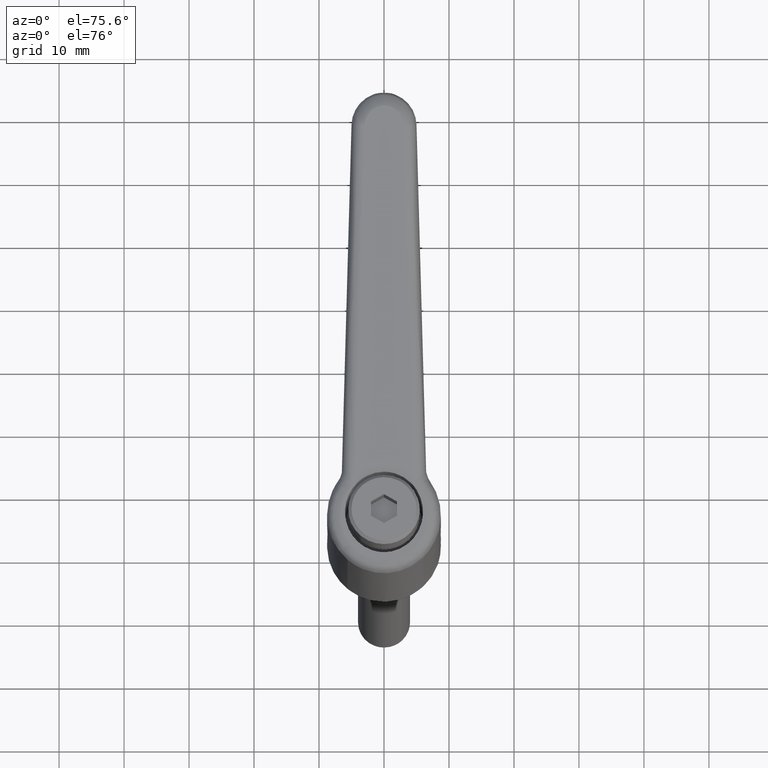
[diagram: clean part render]
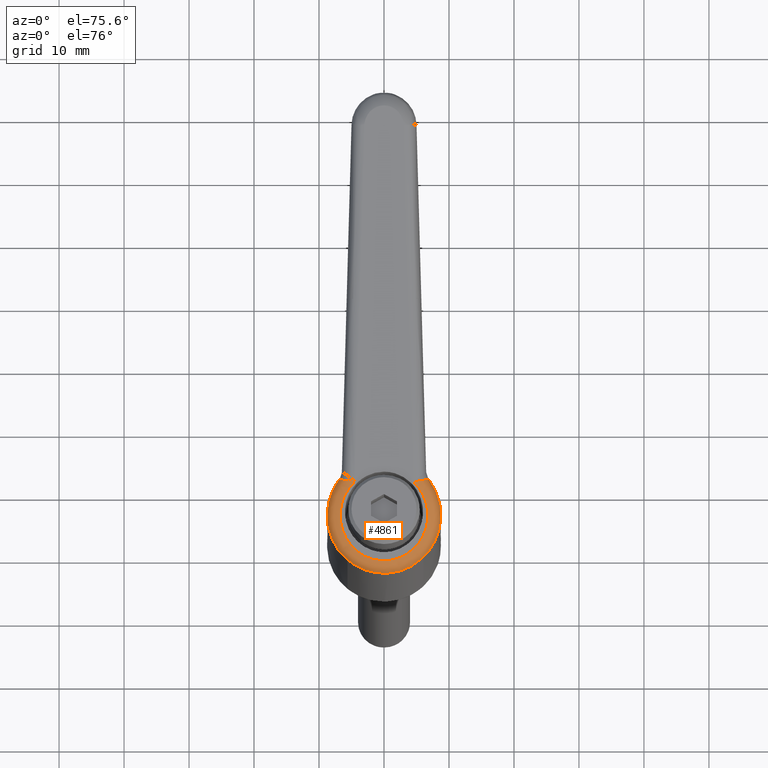
[diagram: same view with one face highlighted and labeled with its STEP entity id]
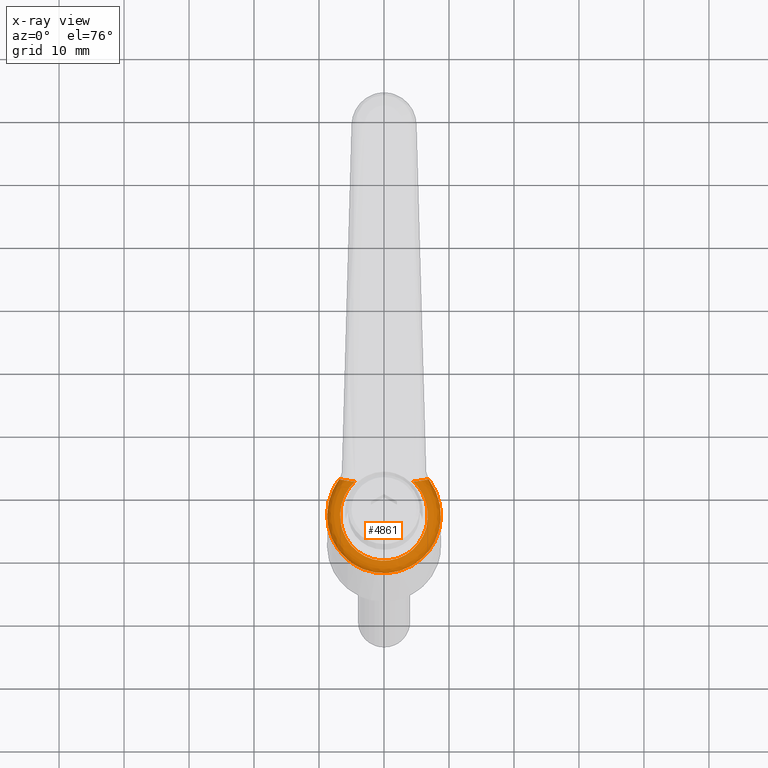
[diagram: x-ray of the same camera — body ghosted, the highlighted face saturated]
A machine part, auxiliary view. The second image highlights one B-rep face of the part: STEP entity #4861.
The next image is the same camera in x-ray: the body ghosted, the highlighted face saturated — about 0% of this face is hidden behind the body in this view.
In plain terms, the highlighted face is a freeform B-spline surface patch.
Its self-contained STEP definition (entity closure, byte-faithful):
#2017=CARTESIAN_POINT('',(-6.708743602350063,5.617406810791533,25.476228958729209));
#2018=VERTEX_POINT('',#2017);
#2019=CARTESIAN_POINT('',(5.378522906579990,6.901738284185690,27.945424589920599));
#2020=VERTEX_POINT('',#2019);
#2021=CARTESIAN_POINT('',(-6.708743602350063,5.617406810791533,25.476228958729212));
#2022=CARTESIAN_POINT('',(-6.576226125315831,5.775669476502915,25.503299725739609));
#2023=CARTESIAN_POINT('',(-6.436393221341032,5.927507258559474,25.531864893499829));
#2024=CARTESIAN_POINT('',(-0.977537447306346,11.855014517118940,26.647003938257686));
#2025=CARTESIAN_POINT('',(5.378522906579985,6.901738284185689,27.945424589920599));
#2033=(BOUNDED_CURVE()B_SPLINE_CURVE(2,(#2021,#2022,#2023,#2024,#2025),.UNSPECIFIED.,.F.,.U.)B_SPLINE_CURVE_WITH_KNOTS((3,2,3),(0.655164718707958,0.666666666666667,1.0),.UNSPECIFIED.)CURVE()GEOMETRIC_REPRESENTATION_ITEM()RATIONAL_B_SPLINE_CURVE((0.982382114094155,0.990876233794840,1.0,0.735587796724693,1.0))REPRESENTATION_ITEM(''));
#2034=EDGE_CURVE('',#2018,#2020,#2033,.T.);
#2060=CARTESIAN_POINT('',(5.378522906579990,-6.901738284185690,27.945424589920599));
#2061=VERTEX_POINT('',#2060);
#2067=CARTESIAN_POINT('',(-6.354468031321500,-6.015250288938894,25.548607703844500));
#2068=VERTEX_POINT('',#2067);
#2069=CARTESIAN_POINT('',(5.378522906579990,-6.901738284185690,27.945424589920599));
#2070=CARTESIAN_POINT('',(-0.890587541730321,-11.787253861322499,26.664769674491605));
#2071=CARTESIAN_POINT('',(-6.354468031321500,-6.015250288938894,25.548607703844500));
#2079=(BOUNDED_CURVE()B_SPLINE_CURVE(2,(#2069,#2070,#2071),.UNSPECIFIED.,.F.,.U.)B_SPLINE_CURVE_WITH_KNOTS((3,3),(0.0,0.329966901783839),.UNSPECIFIED.)CURVE()GEOMETRIC_REPRESENTATION_ITEM()RATIONAL_B_SPLINE_CURVE((1.0,0.738258173474225,0.994713184344168))REPRESENTATION_ITEM(''));
#2080=EDGE_CURVE('',#2061,#2068,#2079,.T.);
#2170=CARTESIAN_POINT('',(-6.354468031321500,-6.015250288938894,25.548607703844500));
#2171=CARTESIAN_POINT('',(-6.395731914196888,-5.971659423468661,25.540178260437880));
#2172=CARTESIAN_POINT('',(-6.436393885741444,-5.927506556663676,25.531871775587799));
#2173=CARTESIAN_POINT('',(-11.642315928615465,-0.274647784081046,24.468398684214339));
#2174=CARTESIAN_POINT('',(-6.708743602350063,5.617406810791533,25.476228958729212));
#2182=(BOUNDED_CURVE()B_SPLINE_CURVE(2,(#2170,#2171,#2172,#2173,#2174),.UNSPECIFIED.,.F.,.U.)B_SPLINE_CURVE_WITH_KNOTS((3,2,3),(0.329966901783839,0.333333333333333,0.655164718707958),.UNSPECIFIED.)CURVE()GEOMETRIC_REPRESENTATION_ITEM()RATIONAL_B_SPLINE_CURVE((0.994713184344168,0.997329623250468,1.0,0.744711562929853,0.982382114094155))REPRESENTATION_ITEM(''));
#2183=EDGE_CURVE('',#2068,#2018,#2182,.T.);
#4176=CARTESIAN_POINT('',(5.355297838498480,6.890936063726871,28.249615104373351));
#4177=VERTEX_POINT('',#4176);
#4196=CARTESIAN_POINT('',(5.355297838498480,6.890936063726871,28.249615104373351));
#4197=CARTESIAN_POINT('',(5.381023914875337,6.890188024420114,28.150572837546580));
#4198=CARTESIAN_POINT('',(5.388920763843506,6.893872938308080,28.046919103362910));
#4199=CARTESIAN_POINT('',(5.378522906579990,6.901738284185690,27.945424589920599));
#4200=B_SPLINE_CURVE_WITH_KNOTS('',3,(#4196,#4197,#4198,#4199),.UNSPECIFIED.,.F.,.U.,(4,4),(7.997706E-009,0.306972434702136),.UNSPECIFIED.);
#4201=EDGE_CURVE('',#4177,#2020,#4200,.T.);
#4268=CARTESIAN_POINT('',(4.498035217750171,4.523532370376100,30.106748746074850));
#4269=VERTEX_POINT('',#4268);
#4270=CARTESIAN_POINT('',(4.498035217750165,4.523532370376080,30.106748746074850));
#4271=CARTESIAN_POINT('',(4.502336605998392,4.559375255711268,30.107887789617841));
#4272=CARTESIAN_POINT('',(4.506895413930955,4.595831219399788,30.108489158110210));
#4273=CARTESIAN_POINT('',(4.516366121340139,4.668125969261170,30.108530391670261));
#4274=CARTESIAN_POINT('',(4.521296476610242,4.704196462623959,30.107977683193120));
#4275=CARTESIAN_POINT('',(4.536678109204940,4.812172678299531,30.104552915216360));
#4276=CARTESIAN_POINT('',(4.547719352967699,4.883843438283479,30.099916795063319));
#4277=CARTESIAN_POINT('',(4.571417191606757,5.026527291993236,30.085635485495271));
#4278=CARTESIAN_POINT('',(4.584073484065975,5.097540520854246,30.075991383877319));
#4279=CARTESIAN_POINT('',(4.611065407534976,5.238867366547858,30.051297153039091));
#4280=CARTESIAN_POINT('',(4.625395938986363,5.309111946103225,30.036233664220120));
#4281=CARTESIAN_POINT('',(4.670341902795421,5.515728255119994,29.983099070257779));
#4282=CARTESIAN_POINT('',(4.703077984326271,5.648994686616846,29.936997977314071));
#4283=CARTESIAN_POINT('',(4.747547194254421,5.809398593367468,29.864443850192121));
#4284=CARTESIAN_POINT('',(4.756619691924306,5.841168267247977,29.849181416192899));
#4285=CARTESIAN_POINT('',(4.775129539865528,5.904060866120195,29.817089495922868));
#4286=CARTESIAN_POINT('',(4.784589990515004,5.935255133666856,29.800216363494581));
#4287=CARTESIAN_POINT('',(4.813273497332856,6.027004535545970,29.747616639095490));
#4288=CARTESIAN_POINT('',(4.832840608515757,6.085893996791362,29.709849344574970));
#4289=CARTESIAN_POINT('',(4.892825031691097,6.255604829328281,29.588258086390550));
#4290=CARTESIAN_POINT('',(4.934547145165914,6.359634602194950,29.496157909599159));
#4291=CARTESIAN_POINT('',(5.021293523994483,6.546636485948359,29.287437905626149));
#4292=CARTESIAN_POINT('',(5.064765250096471,6.626282447180333,29.174555927308418));
#4293=CARTESIAN_POINT('',(5.129920393239101,6.724467221023867,28.992065979282650));
#4294=CARTESIAN_POINT('',(5.151630952138969,6.753621342530519,28.929025300490590));
#4295=CARTESIAN_POINT('',(5.195010504765208,6.804304708020362,28.798218551450940));
#4296=CARTESIAN_POINT('',(5.216230093705772,6.825303526279893,28.731803565107349));
#4297=CARTESIAN_POINT('',(5.278386179295799,6.875506247370998,28.529915688207272));
#4298=CARTESIAN_POINT('',(5.317883583990349,6.892139965603261,28.391693008403539));
#4299=CARTESIAN_POINT('',(5.355297838498480,6.890936063726871,28.249615104373351));
#4300=B_SPLINE_CURVE_WITH_KNOTS('',3,(#4270,#4271,#4272,#4273,#4274,#4275,#4276,#4277,#4278,#4279,#4280,#4281,#4282,#4283,#4284,#4285,#4286,#4287,#4288,#4289,#4290,#4291,#4292,#4293,#4294,#4295,#4296,#4297,#4298,#4299),.UNSPECIFIED.,.F.,.U.,(4,2,2,2,2,2,2,2,2,2,2,2,2,2,4),(0.0,0.031250000000000,0.062500000000000,0.124999999999999,0.187499999999999,0.249999999999999,0.374999999999998,0.406249999999999,0.437499999999999,0.499999999999999,0.625000000000000,0.750000000000001,0.812500000000001,0.875000000000002,1.0),.UNSPECIFIED.);
#4301=EDGE_CURVE('',#4269,#4177,#4300,.T.);
#4421=CARTESIAN_POINT('',(5.355297838498480,-6.890936063726871,28.249615104373351));
#4422=VERTEX_POINT('',#4421);
#4431=CARTESIAN_POINT('',(5.378522906579990,-6.901738284185690,27.945424589920599));
#4432=CARTESIAN_POINT('',(5.389195590789070,-6.893805372467013,28.046902554854679));
#4433=CARTESIAN_POINT('',(5.381295383872603,-6.890117507370787,28.150626193046829));
#4434=CARTESIAN_POINT('',(5.355297838498480,-6.890936063726871,28.249615104373351));
#4435=B_SPLINE_CURVE_WITH_KNOTS('',3,(#4431,#4432,#4433,#4434),.UNSPECIFIED.,.F.,.U.,(4,4),(8.492741E-009,0.307024501500945),.UNSPECIFIED.);
#4436=EDGE_CURVE('',#2061,#4422,#4435,.T.);
#4511=CARTESIAN_POINT('',(4.498035217750171,-4.523532370376100,30.106748746074850));
#4512=VERTEX_POINT('',#4511);
#4543=CARTESIAN_POINT('',(5.355297838498480,-6.890936063726871,28.249615104373351));
#4544=CARTESIAN_POINT('',(5.317883583990347,-6.892139965603259,28.391693008403529));
#4545=CARTESIAN_POINT('',(5.278386179295800,-6.875506247370998,28.529915688207279));
#4546=CARTESIAN_POINT('',(5.216230093705772,-6.825303526279895,28.731803565107349));
#4547=CARTESIAN_POINT('',(5.195010504765206,-6.804304708020362,28.798218551450930));
#4548=CARTESIAN_POINT('',(5.151630952138964,-6.753621342530515,28.929025300490579));
#4549=CARTESIAN_POINT('',(5.129920393239098,-6.724467221023867,28.992065979282639));
#4550=CARTESIAN_POINT('',(5.064765250096468,-6.626282447180334,29.174555927308411));
#4551=CARTESIAN_POINT('',(5.021293523994487,-6.546636485948352,29.287437905626138));
#4552=CARTESIAN_POINT('',(4.934547145165922,-6.359634602194949,29.496157909599159));
#4553=CARTESIAN_POINT('',(4.892825031691098,-6.255604829328282,29.588258086390550));
#4554=CARTESIAN_POINT('',(4.832840608515753,-6.085893996791364,29.709849344574970));
#4555=CARTESIAN_POINT('',(4.813273497332854,-6.027004535545969,29.747616639095479));
#4556=CARTESIAN_POINT('',(4.784589990515006,-5.935255133666860,29.800216363494581));
#4557=CARTESIAN_POINT('',(4.775129539865523,-5.904060866120197,29.817089495922868));
#4558=CARTESIAN_POINT('',(4.756619691924299,-5.841168267247980,29.849181416192909));
#4559=CARTESIAN_POINT('',(4.747547194254424,-5.809398593367471,29.864443850192139));
#4560=CARTESIAN_POINT('',(4.703077984326272,-5.648994686616849,29.936997977314071));
#4561=CARTESIAN_POINT('',(4.670341902795428,-5.515728255119993,29.983099070257779));
#4562=CARTESIAN_POINT('',(4.625395938986368,-5.309111946103225,30.036233664220109));
#4563=CARTESIAN_POINT('',(4.611065407534982,-5.238867366547863,30.051297153039091));
#4564=CARTESIAN_POINT('',(4.584073484065979,-5.097540520854249,30.075991383877330));
#4565=CARTESIAN_POINT('',(4.571417191606755,-5.026527291993239,30.085635485495271));
#4566=CARTESIAN_POINT('',(4.547719352967694,-4.883843438283479,30.099916795063329));
#4567=CARTESIAN_POINT('',(4.536678109204912,-4.812172678299531,30.104552915216360));
#4568=CARTESIAN_POINT('',(4.521296476610207,-4.704196462623951,30.107977683193109));
#4569=CARTESIAN_POINT('',(4.516366121340096,-4.668125969261161,30.108530391670229));
#4570=CARTESIAN_POINT('',(4.506895413930857,-4.595831219399783,30.108489158110171));
#4571=CARTESIAN_POINT('',(4.502336605997869,-4.559375255711337,30.107887789617699));
#4572=CARTESIAN_POINT('',(4.498035217750185,-4.523532370376079,30.106748746074850));
#4573=B_SPLINE_CURVE_WITH_KNOTS('',3,(#4543,#4544,#4545,#4546,#4547,#4548,#4549,#4550,#4551,#4552,#4553,#4554,#4555,#4556,#4557,#4558,#4559,#4560,#4561,#4562,#4563,#4564,#4565,#4566,#4567,#4568,#4569,#4570,#4571,#4572),.UNSPECIFIED.,.F.,.U.,(4,2,2,2,2,2,2,2,2,2,2,2,2,2,4),(0.0,0.124999999999998,0.187499999999998,0.249999999999999,0.374999999999999,0.499999999999999,0.562499999999999,0.593750000000000,0.625000000000000,0.750000000000000,0.812500000000000,0.875000000000000,0.937500000000000,0.968750000000000,1.0),.UNSPECIFIED.);
#4574=EDGE_CURVE('',#4422,#4512,#4573,.T.);
#4655=CARTESIAN_POINT('',(4.615397028170856,-4.366739180390207,30.137827133943315));
#4656=CARTESIAN_POINT('',(4.172201241828332,-4.887221688360378,30.020465187154315));
#4657=CARTESIAN_POINT('',(3.649242139449358,-5.339647193579908,29.881981247916624));
#4658=CARTESIAN_POINT('',(2.491446491322864,-6.067090639238953,29.575387287785912));
#4659=CARTESIAN_POINT('',(1.856802700326025,-6.341989147806029,29.407328309961173));
#4660=CARTESIAN_POINT('',(0.534034825364386,-6.688922355130702,29.057048325946337));
#4661=CARTESIAN_POINT('',(-0.153901486548702,-6.760918521588940,28.874877043364272));
#4662=CARTESIAN_POINT('',(-1.519946584342729,-6.695313903501575,28.513136889194971));
#4663=CARTESIAN_POINT('',(-2.197866870877049,-6.557730528769104,28.333617933809506));
#4664=CARTESIAN_POINT('',(-3.481457157599537,-6.085539227395603,27.993712502459541));
#4665=CARTESIAN_POINT('',(-4.086952819343717,-5.751001999417832,27.833372192771446));
#4666=CARTESIAN_POINT('',(-5.169913306731971,-4.915627212080056,27.546595208395392));
#4667=CARTESIAN_POINT('',(-5.647232136573916,-4.414907584669277,27.420197194615476));
#4668=CARTESIAN_POINT('',(-6.429843548294072,-3.293214142896105,27.212955154665657));
#4669=CARTESIAN_POINT('',(-6.735030928961744,-2.672395621746335,27.132138986655150));
#4670=CARTESIAN_POINT('',(-7.145224277015762,-1.367629792531147,27.023516361235316));
#4671=CARTESIAN_POINT('',(-7.250175151627738,-0.683861796260634,26.995724492852915));
#4672=CARTESIAN_POINT('',(-7.250175151627738,0.683861796260659,26.995724492852915));
#4673=CARTESIAN_POINT('',(-7.145224277016042,1.367629792531263,27.023516361235245));
#4674=CARTESIAN_POINT('',(-6.735030928961479,2.672395621746159,27.132138986655224));
#4675=CARTESIAN_POINT('',(-6.429843548294103,3.293214142896208,27.212955154665650));
#4676=CARTESIAN_POINT('',(-5.647232136573942,4.414907584669090,27.420197194615465));
#4677=CARTESIAN_POINT('',(-5.169913306732277,4.915627212080033,27.546595208395296));
#4678=CARTESIAN_POINT('',(-4.086952819343458,5.751001999417816,27.833372192771513));
#4679=CARTESIAN_POINT('',(-3.481457157599678,6.085539227395609,27.993712502459491));
#4680=CARTESIAN_POINT('',(-2.197866870876903,6.557730528769099,28.333617933809556));
#4681=CARTESIAN_POINT('',(-1.519946584342791,6.695313903501271,28.513136889194971));
#4682=CARTESIAN_POINT('',(-0.153901486548693,6.760918521589242,28.874877043364254));
#4683=CARTESIAN_POINT('',(0.534034825364424,6.688922355130869,29.057048325946361));
#4684=CARTESIAN_POINT('',(1.856802700325918,6.341989147805878,29.407328309961130));
#4685=CARTESIAN_POINT('',(2.491446491322738,6.067090639239244,29.575387287785876));
#4686=CARTESIAN_POINT('',(3.649242139449513,5.339647193579598,29.881981247916674));
#4687=CARTESIAN_POINT('',(4.172201241828902,4.887221688361258,30.020465187154446));
#4688=CARTESIAN_POINT('',(4.615397028170848,4.366739180390215,30.137827133943315));
#4689=CARTESIAN_POINT('',(4.620985455576390,-4.371833108802079,30.139306996207377));
#4690=CARTESIAN_POINT('',(4.177241635133941,-4.892875760019174,30.021799925410285));
#4691=CARTESIAN_POINT('',(3.653660366801649,-5.345746520246817,29.883151231430457));
#4692=CARTESIAN_POINT('',(2.494550847329387,-6.073847007896934,29.576209347190975));
#4693=CARTESIAN_POINT('',(1.859213008195906,-6.348951796585901,29.407966579621398));
#4694=CARTESIAN_POINT('',(0.535060536842392,-6.696072612521947,29.057319942914781));
#4695=CARTESIAN_POINT('',(-0.153565663301859,-6.768044588365016,28.874965972165580));
#4696=CARTESIAN_POINT('',(-1.520931734236148,-6.702193604161900,28.512876013273019));
#4697=CARTESIAN_POINT('',(-2.199479724278937,-6.564384051701276,28.333190836754511));
#4698=CARTESIAN_POINT('',(-3.484226256669608,-6.091577460530973,27.992979221892053));
#4699=CARTESIAN_POINT('',(-4.090245898178576,-5.756649532111302,27.832500157984796));
#4700=CARTESIAN_POINT('',(-5.174126726677993,-4.920368794142553,27.545479459593750));
#4701=CARTESIAN_POINT('',(-5.651837526375530,-4.419134664940898,27.418977648921480));
#4702=CARTESIAN_POINT('',(-6.435086093689018,-3.296327321728134,27.211566884847560));
#4703=CARTESIAN_POINT('',(-6.740515336752171,-2.674911927606467,27.130686669654182));
#4704=CARTESIAN_POINT('',(-7.151034007731326,-1.368907674431170,27.021977896005932));
#4705=CARTESIAN_POINT('',(-7.256066578314639,-0.684501725285289,26.994164393847800));
#4706=CARTESIAN_POINT('',(-7.256066578314639,0.684501725285313,26.994164393847800));
#4707=CARTESIAN_POINT('',(-7.151034007731609,1.368907674431288,27.021977896005854));
#4708=CARTESIAN_POINT('',(-6.740515336751898,2.674911927606287,27.130686669654231));
#4709=CARTESIAN_POINT('',(-6.435086093689048,3.296327321728240,27.211566884847560));
#4710=CARTESIAN_POINT('',(-5.651837526375558,4.419134664940709,27.418977648921469));
#4711=CARTESIAN_POINT('',(-5.174126726678302,4.920368794142537,27.545479459593675));
#4712=CARTESIAN_POINT('',(-4.090245898178313,5.756649532111282,27.832500157984853));
#4713=CARTESIAN_POINT('',(-3.484226256669749,6.091577460530975,27.992979221892011));
#4714=CARTESIAN_POINT('',(-2.199479724278792,6.564384051701273,28.333190836754561));
#4715=CARTESIAN_POINT('',(-1.520931734236210,6.702193604161593,28.512876013272997));
#4716=CARTESIAN_POINT('',(-0.153565663301850,6.768044588365321,28.874965972165569));
#4717=CARTESIAN_POINT('',(0.535060536842429,6.696072612522110,29.057319942914770));
#4718=CARTESIAN_POINT('',(1.859213008195798,6.348951796585757,29.407966579621384));
#4719=CARTESIAN_POINT('',(2.494550847329260,6.073847007897227,29.576209347190932));
#4720=CARTESIAN_POINT('',(3.653660366801806,5.345746520246505,29.883151231430510));
#4721=CARTESIAN_POINT('',(4.177241635134516,4.892875760020062,30.021799925410456));
#4722=CARTESIAN_POINT('',(4.620985455576382,4.371833108802086,30.139306996207377));
#4723=CARTESIAN_POINT('',(6.393730614825754,-5.987714693801401,30.608744724321422));
#4724=CARTESIAN_POINT('',(5.759483703104325,-6.667759085871599,30.440790843441352));
#4725=CARTESIAN_POINT('',(5.023972669966265,-7.237451429535908,30.246021377230132));
#4726=CARTESIAN_POINT('',(3.432993244892872,-8.116287626465935,29.824716734043161));
#4727=CARTESIAN_POINT('',(2.578049352061562,-8.425452087311960,29.598320448810870));
#4728=CARTESIAN_POINT('',(0.832794936373514,-8.771585694439699,29.136162499256333));
#4729=CARTESIAN_POINT('',(-0.057394914658386,-8.808758515052931,28.900432789840735));
#4730=CARTESIAN_POINT('',(-1.795861046266179,-8.622136327752891,28.440072434620518));
#4731=CARTESIAN_POINT('',(-2.644071097228616,-8.398462023018384,28.215459326972841));
#4732=CARTESIAN_POINT('',(-4.230509079457582,-7.718904455660549,27.795357295789351));
#4733=CARTESIAN_POINT('',(-4.968661937223152,-7.263107029107678,27.599888252344364));
#4734=CARTESIAN_POINT('',(-6.278075044047867,-6.162699633846782,27.253144722500998));
#4735=CARTESIAN_POINT('',(-6.849249978682447,-5.518185727321405,27.101892828075506));
#4736=CARTESIAN_POINT('',(-7.781389216756794,-4.095802017411188,26.855054570514898));
#4737=CARTESIAN_POINT('',(-8.142279155696665,-3.318056392226147,26.759487899719876));
#4738=CARTESIAN_POINT('',(-8.626605976437157,-1.693467762205729,26.631234111406496));
#4739=CARTESIAN_POINT('',(-8.749999999999998,-0.846773346107403,26.598558343101871));
#4740=CARTESIAN_POINT('',(-8.749999999999998,0.846773346107432,26.598558343101871));
#4741=CARTESIAN_POINT('',(-8.626605976437762,1.693467762206138,26.631234111404112));
#4742=CARTESIAN_POINT('',(-8.142279155696080,3.318056392225663,26.759487899722259));
#4743=CARTESIAN_POINT('',(-7.781389216756529,4.095802017412039,26.855054570514891));
#4744=CARTESIAN_POINT('',(-6.849249978682784,5.518185727320451,27.101892828075503));
#4745=CARTESIAN_POINT('',(-6.278075044047898,6.162699633846455,27.253144722500991));
#4746=CARTESIAN_POINT('',(-4.968661937223179,7.263107029107959,27.599888252344371));
#4747=CARTESIAN_POINT('',(-4.230509079457582,7.718904455659328,27.795357295789351));
#4748=CARTESIAN_POINT('',(-2.644071097228614,8.398462023019615,28.215459326972844));
#4749=CARTESIAN_POINT('',(-1.795861046266251,8.622136327752276,28.440072434620514));
#4750=CARTESIAN_POINT('',(-0.057394914658384,8.808758515053546,28.900432789840728));
#4751=CARTESIAN_POINT('',(0.832794936373282,8.771585694438326,29.136162499254901));
#4752=CARTESIAN_POINT('',(2.578049352061701,8.425452087313351,29.598320448812284));
#4753=CARTESIAN_POINT('',(3.432993244892894,8.116287626467448,29.824716734043172));
#4754=CARTESIAN_POINT('',(5.023972669966288,7.237451429534374,30.246021377230143));
#4755=CARTESIAN_POINT('',(5.759483703104968,6.667759085873686,30.440790843442493));
#4756=CARTESIAN_POINT('',(6.393730614825744,5.987714693801413,30.608744724321422));
#4757=CARTESIAN_POINT('',(6.661948953751008,-5.672824503058196,28.199826737859418));
#4758=CARTESIAN_POINT('',(6.086204128593324,-6.348959524896664,28.082254392425359));
#4759=CARTESIAN_POINT('',(5.406875097760133,-6.936634708223751,27.943531192719878));
#4760=CARTESIAN_POINT('',(3.902935999856282,-7.881515569601084,27.636426418206302));
#4761=CARTESIAN_POINT('',(3.078570615984578,-8.238550509999348,27.468095977855825));
#4762=CARTESIAN_POINT('',(1.360414920151136,-8.689107145579213,27.117270492483083));
#4763=CARTESIAN_POINT('',(0.466867088736713,-8.782564659463757,26.934825371075352));
#4764=CARTESIAN_POINT('',(-1.307442659188217,-8.697241105513388,26.572557909484729));
#4765=CARTESIAN_POINT('',(-2.187953355185637,-8.518470588869848,26.392786396132095));
#4766=CARTESIAN_POINT('',(-3.855129982170643,-7.905027340146941,26.052413933040860));
#4767=CARTESIAN_POINT('',(-4.641558345164576,-7.470439805646286,25.891860367026172));
#4768=CARTESIAN_POINT('',(-6.048133118396951,-6.385266163951060,25.604708009247052));
#4769=CARTESIAN_POINT('',(-6.668077651219171,-5.734833129480643,25.478149047280482));
#4770=CARTESIAN_POINT('',(-7.684546763773790,-4.277769785326785,25.270645266851357));
#4771=CARTESIAN_POINT('',(-8.080924553563223,-3.471346935585818,25.189729190397419));
#4772=CARTESIAN_POINT('',(-8.613689796879093,-1.776496763193878,25.080972338625212));
#4773=CARTESIAN_POINT('',(-8.749999999999998,-0.888312086532771,25.053146621502570));
#4774=CARTESIAN_POINT('',(-8.749999999999996,0.888312086532802,25.053146621502570));
#4775=CARTESIAN_POINT('',(-8.613689796879008,1.776496763194108,25.080972338625205));
#4776=CARTESIAN_POINT('',(-8.080924553563328,3.471346935585511,25.189729190397419));
#4777=CARTESIAN_POINT('',(-7.684546763773441,4.277769785327271,25.270645266851346));
#4778=CARTESIAN_POINT('',(-6.668077651219595,5.734833129480049,25.478149047280471));
#4779=CARTESIAN_POINT('',(-6.048133118397217,6.385266163950852,25.604708009247041));
#4780=CARTESIAN_POINT('',(-4.641558345164373,7.470439805646443,25.891860367026155));
#4781=CARTESIAN_POINT('',(-3.855129982170841,7.905027340146872,26.052413933040860));
#4782=CARTESIAN_POINT('',(-2.187953355185433,8.518470588869921,26.392786396132106));
#4783=CARTESIAN_POINT('',(-1.307442659188280,8.697241105513388,26.572557909484729));
#4784=CARTESIAN_POINT('',(0.466867088736707,8.782564659463763,26.934825371075373));
#4785=CARTESIAN_POINT('',(1.360414920150953,8.689107145579254,27.117270492483204));
#4786=CARTESIAN_POINT('',(3.078570615984669,8.238550509999326,27.468095977855686));
#4787=CARTESIAN_POINT('',(3.902935999856163,7.881515569601154,27.636426418206302));
#4788=CARTESIAN_POINT('',(5.406875097760289,6.936634708223655,27.943531192719881));
#4789=CARTESIAN_POINT('',(6.086204128593103,6.348959524896920,28.082254392426726));
#4790=CARTESIAN_POINT('',(6.661948953750997,5.672824503058208,28.199826737859418));
#4791=CARTESIAN_POINT('',(6.662792540859937,-5.671834125939675,28.192250327655731));
#4792=CARTESIAN_POINT('',(6.087242531460448,-6.347946296606279,28.074758347422133));
#4793=CARTESIAN_POINT('',(5.408106825263658,-6.935667035515860,27.936124500359096));
#4794=CARTESIAN_POINT('',(3.904486981672528,-7.880740736523414,27.629204265183034));
#4795=CARTESIAN_POINT('',(3.080245029735779,-8.237925260696807,27.460969652953338));
#4796=CARTESIAN_POINT('',(1.362228409500193,-8.688823657511120,27.110331333118840));
#4797=CARTESIAN_POINT('',(0.468693563266853,-8.782473402783374,26.927977398375862));
#4798=CARTESIAN_POINT('',(-1.305696553330436,-8.697509606650659,26.565881506347374));
#4799=CARTESIAN_POINT('',(-2.186302503586838,-8.518904942359187,26.386189497470603));
#4800=CARTESIAN_POINT('',(-3.853740342597851,-7.905716360200410,26.045961620998142));
#4801=CARTESIAN_POINT('',(-4.640334901021663,-7.471215278851858,25.885471942187799));
#4802=CARTESIAN_POINT('',(-6.047257527989498,-6.386113669764663,25.598430966166134));
#4803=CARTESIAN_POINT('',(-6.667382448831298,-5.735664458378473,25.471918346546495));
#4804=CARTESIAN_POINT('',(-7.684170526517653,-4.278476738234281,25.264489765925429));
#4805=CARTESIAN_POINT('',(-8.080685057339208,-3.471945301560597,25.183601674768084));
#4806=CARTESIAN_POINT('',(-8.613639059706209,-1.776822916663490,25.074882619972893));
#4807=CARTESIAN_POINT('',(-8.750000000000004,-0.888475519297994,25.047066251503814));
#4808=CARTESIAN_POINT('',(-8.750000000000002,0.888475519298025,25.047066251503814));
#4809=CARTESIAN_POINT('',(-8.613639059706127,1.776822916663719,25.074882619972914));
#4810=CARTESIAN_POINT('',(-8.080685057339311,3.471945301560290,25.183601674768052));
#4811=CARTESIAN_POINT('',(-7.684170526517304,4.278476738234766,25.264489765925429));
#4812=CARTESIAN_POINT('',(-6.667382448831721,5.735664458377879,25.471918346546495));
#4813=CARTESIAN_POINT('',(-6.047257527989766,6.386113669764458,25.598430966166134));
#4814=CARTESIAN_POINT('',(-4.640334901021462,7.471215278852021,25.885471942187809));
#4815=CARTESIAN_POINT('',(-3.853740342598052,7.905716360200351,26.045961620998156));
#4816=CARTESIAN_POINT('',(-2.186302503586633,8.518904942359256,26.386189497470614));
#4817=CARTESIAN_POINT('',(-1.305696553330500,8.697509606650664,26.565881506347374));
#4818=CARTESIAN_POINT('',(0.468693563266848,8.782473402783376,26.927977398375869));
#4819=CARTESIAN_POINT('',(1.362228409500013,8.688823657511174,27.110331333118982));
#4820=CARTESIAN_POINT('',(3.080245029735869,8.237925260696777,27.460969652953189));
#4821=CARTESIAN_POINT('',(3.904486981672408,7.880740736523479,27.629204265183041));
#4822=CARTESIAN_POINT('',(5.408106825263817,6.935667035515768,27.936124500359103));
#4823=CARTESIAN_POINT('',(6.087242531460216,6.347946296606521,28.074758347423472));
#4824=CARTESIAN_POINT('',(6.662792540859926,5.671834125939688,28.192250327655731));
#4832=(BOUNDED_SURFACE()B_SPLINE_SURFACE(3,2,((#4655,#4689,#4723,#4757,#4791),(#4656,#4690,#4724,#4758,#4792),(#4657,#4691,#4725,#4759,#4793),(#4658,#4692,#4726,#4760,#4794),(#4659,#4693,#4727,#4761,#4795),(#4660,#4694,#4728,#4762,#4796),(#4661,#4695,#4729,#4763,#4797),(#4662,#4696,#4730,#4764,#4798),(#4663,#4697,#4731,#4765,#4799),(#4664,#4698,#4732,#4766,#4800),(#4665,#4699,#4733,#4767,#4801),(#4666,#4700,#4734,#4768,#4802),(#4667,#4701,#4735,#4769,#4803),(#4668,#4702,#4736,#4770,#4804),(#4669,#4703,#4737,#4771,#4805),(#4670,#4704,#4738,#4772,#4806),(#4671,#4705,#4739,#4773,#4807),(#4672,#4706,#4740,#4774,#4808),(#4673,#4707,#4741,#4775,#4809),(#4674,#4708,#4742,#4776,#4810),(#4675,#4709,#4743,#4777,#4811),(#4676,#4710,#4744,#4778,#4812),(#4677,#4711,#4745,#4779,#4813),(#4678,#4712,#4746,#4780,#4814),(#4679,#4713,#4747,#4781,#4815),(#4680,#4714,#4748,#4782,#4816),(#4681,#4715,#4749,#4783,#4817),(#4682,#4716,#4750,#4784,#4818),(#4683,#4717,#4751,#4785,#4819),(#4684,#4718,#4752,#4786,#4820),(#4685,#4719,#4753,#4787,#4821),(#4686,#4720,#4754,#4788,#4822),(#4687,#4721,#4755,#4789,#4823),(#4688,#4722,#4756,#4790,#4824)),.UNSPECIFIED.,.F.,.F.,.U.)B_SPLINE_SURFACE_WITH_KNOTS((4,2,2,2,2,2,2,2,2,2,2,2,2,2,2,2,4),(3,1,1,3),(0.0,2.719287153332939,5.438574306665882,8.157861459998825,10.877148613331761,13.596435766664699,16.315722919997640,19.035010073330579,21.754297226663521,24.473584379996449,27.192871533329399,29.912158686662341,32.631445839995280,35.350732993328222,38.070020146661157,40.789307299994100,43.508594453327042),(0.0,0.018960172923340,3.802137364946411,3.821053470818917),.UNSPECIFIED.)GEOMETRIC_REPRESENTATION_ITEM()RATIONAL_B_SPLINE_SURFACE(((1.003663770569556,1.001831885284778,0.634478722541464,1.001827627634687,1.003655255269374),(1.003597244575403,1.001798622287702,0.641115782888204,1.001794441947148,1.003588883894295),(1.003519786570874,1.001759893285437,0.648843490785715,1.001755802958456,1.003511605916912),(1.003351991801781,1.001675995900891,0.665583774377504,1.001672100567401,1.003344201134801),(1.003261682441915,1.001630841220958,0.674593616003208,1.001627050835539,1.003254101671078),(1.003077460408351,1.001538730204175,0.692972788979822,1.001535153902292,1.003070307804585),(1.002983574078534,1.001491787039267,0.702339492095908,1.001488319842235,1.002976639684470),(1.002800754800398,1.001400377400199,0.720578717183778,1.001397122656567,1.002794245313134),(1.002711834529962,1.001355917264981,0.729449974328503,1.001352765855166,1.002705531710332),(1.002546185786784,1.001273092893392,0.745976156595144,1.001270133983182,1.002540267966364),(1.002469462010672,1.001234731005336,0.753630613151229,1.001231861255455,1.002463722510911),(1.002333887201868,1.001166943600934,0.767156426616950,1.001164231401885,1.002328462803769),(1.002275037158681,1.001137518579340,0.773027684807386,1.001134874769642,1.002269749539284),(1.002179262853283,1.001089631426642,0.782582744490318,1.001087098915801,1.002174197831602),(1.002142338320773,1.001071169160386,0.786266572949705,1.001068679559367,1.002137359118733),(1.002092837501644,1.001046418750822,0.791205092515674,1.001043986674465,1.002087973348931),(1.002080260857594,1.001040130428797,0.792459819282005,1.001037712967698,1.002075425935395),(1.002080260857594,1.001040130428797,0.792459819282005,1.001037712967698,1.002075425935395),(1.002092837501646,1.001046418750823,0.791205092515560,1.001043986674466,1.002087973348932),(1.002142338320771,1.001071169160386,0.786266572949819,1.001068679559366,1.002137359118732),(1.002179262853283,1.001089631426642,0.782582744490318,1.001087098915801,1.002174197831602),(1.002275037158681,1.001137518579340,0.773027684807385,1.001134874769642,1.002269749539284),(1.002333887201867,1.001166943600933,0.767156426617105,1.001164231401884,1.002328462803767),(1.002469462010673,1.001234731005337,0.753630613151074,1.001231861255456,1.002463722510912),(1.002546185786784,1.001273092893392,0.745976156595182,1.001270133983182,1.002540267966363),(1.002711834529962,1.001355917264981,0.729449974328463,1.001352765855166,1.002705531710332),(1.002800754800398,1.001400377400199,0.720578717183739,1.001397122656567,1.002794245313134),(1.002983574078534,1.001491787039267,0.702339492095947,1.001488319842234,1.002976639684469),(1.003077460408348,1.001538730204174,0.692972788980115,1.001535153902291,1.003070307804582),(1.003261682441918,1.001630841220959,0.674593616002916,1.001627050835540,1.003254101671081),(1.003351991801783,1.001675995900892,0.665583774377308,1.001672100567402,1.003344201134803),(1.003519786570872,1.001759893285436,0.648843490785909,1.001755802958455,1.003511605916910),(1.003597244575405,1.001798622287702,0.641115782888059,1.001794441947148,1.003588883894297),(1.003663770569556,1.001831885284778,0.634478722541464,1.001827627634687,1.003655255269374)))REPRESENTATION_ITEM('')SURFACE());
#4833=ORIENTED_EDGE('',*,*,#4301,.T.);
#4834=ORIENTED_EDGE('',*,*,#4201,.T.);
#4835=ORIENTED_EDGE('',*,*,#2034,.F.);
#4836=ORIENTED_EDGE('',*,*,#2183,.F.);
#4837=ORIENTED_EDGE('',*,*,#2080,.F.);
#4838=ORIENTED_EDGE('',*,*,#4436,.T.);
#4839=ORIENTED_EDGE('',*,*,#4574,.T.);
#4840=CARTESIAN_POINT('',(4.498035217750171,4.523532370376100,30.106748746074850));
#4841=CARTESIAN_POINT('',(1.391389042807188,7.964275816364706,29.284082885271129));
#4842=CARTESIAN_POINT('',(-2.935290608949344,6.300001467443412,28.138341967350460));
#4843=CARTESIAN_POINT('',(-7.261970260705871,4.635727118522119,26.992601049429794));
#4844=CARTESIAN_POINT('',(-7.261970260705871,-1.033719E-014,26.992601049429801));
#4845=CARTESIAN_POINT('',(-7.261970260705871,-4.635727118522133,26.992601049429794));
#4846=CARTESIAN_POINT('',(-2.935290608949325,-6.300001467443418,28.138341967350470));
#4847=CARTESIAN_POINT('',(1.391389042807214,-7.964275816364701,29.284082885271129));
#4848=CARTESIAN_POINT('',(4.498035217750171,-4.523532370376100,30.106748746074850));
#4856=(BOUNDED_CURVE()B_SPLINE_CURVE(2,(#4840,#4841,#4842,#4843,#4844,#4845,#4846,#4847,#4848),.UNSPECIFIED.,.F.,.U.)B_SPLINE_CURVE_WITH_KNOTS((3,2,2,2,3),(0.0,0.250000000000000,0.500000000000000,0.750000000000000,1.0),.UNSPECIFIED.)CURVE()GEOMETRIC_REPRESENTATION_ITEM()RATIONAL_B_SPLINE_CURVE((1.0,0.824321060619584,1.0,0.824321060619584,1.0,0.824321060619584,1.0,0.824321060619584,1.0))REPRESENTATION_ITEM(''));
#4857=EDGE_CURVE('',#4269,#4512,#4856,.T.);
#4858=ORIENTED_EDGE('',*,*,#4857,.F.);
#4859=EDGE_LOOP('',(#4833,#4834,#4835,#4836,#4837,#4838,#4839,#4858));
#4860=FACE_OUTER_BOUND('',#4859,.T.);
#4861=ADVANCED_FACE('',(#4860),#4832,.T.);